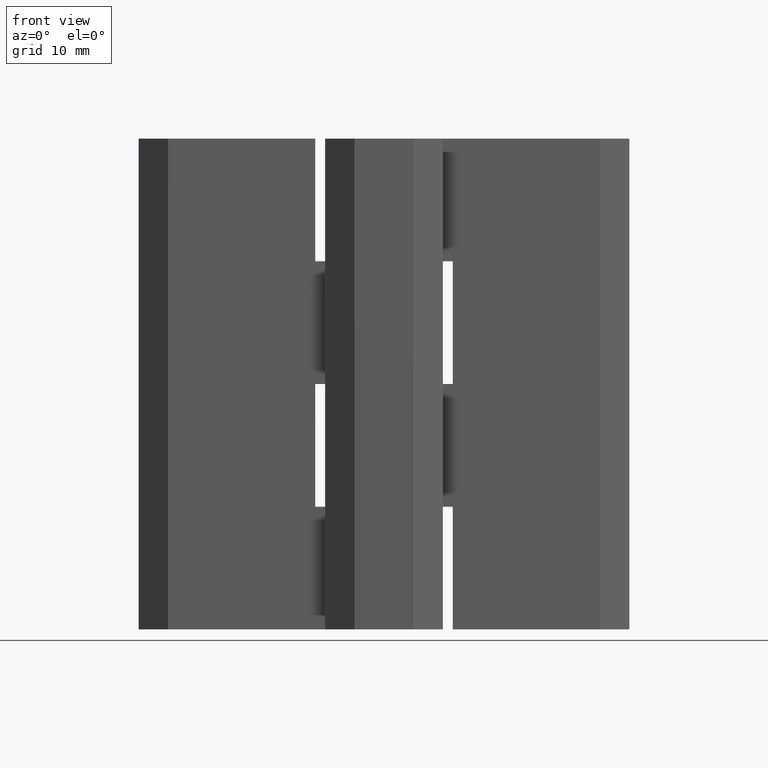
[diagram: clean part render]
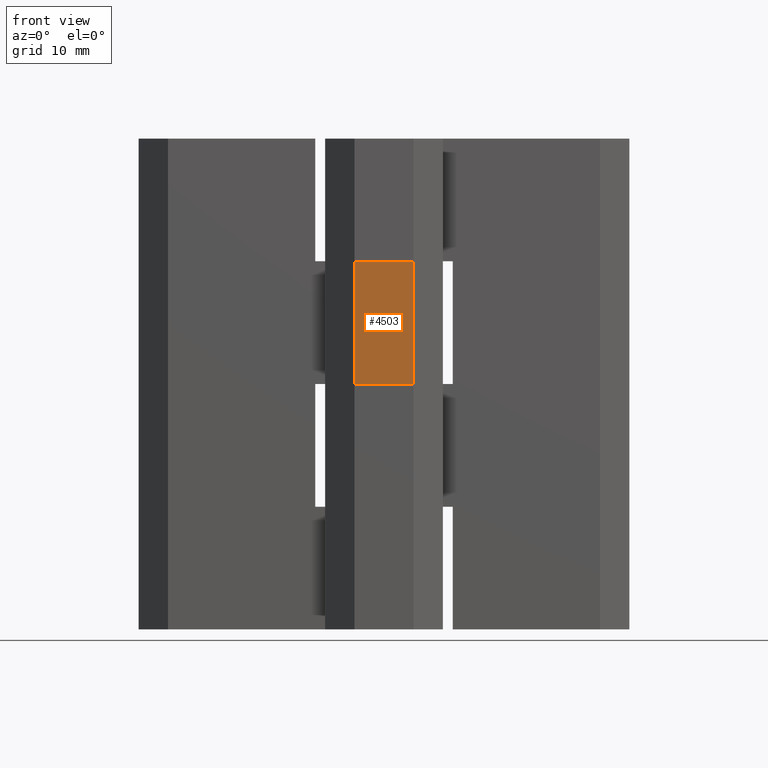
[diagram: same view with one face highlighted and labeled with its STEP entity id]
A machine part, front view. The second image highlights one B-rep face of the part: STEP entity #4503.
In plain terms, the highlighted face is a freeform B-spline surface patch.
Its self-contained STEP definition (entity closure, byte-faithful):
#4039=CARTESIAN_POINT('',(3.000000000000135,-5.0,25.0));
#4040=VERTEX_POINT('',#4039);
#4046=CARTESIAN_POINT('',(-3.0,-5.0,25.0));
#4047=VERTEX_POINT('',#4046);
#4048=CARTESIAN_POINT('',(-3.0,-5.0,25.0));
#4049=CARTESIAN_POINT('',(3.000000000000135,-5.0,25.0));
#4050=QUASI_UNIFORM_CURVE('',1,(#4048,#4049),.UNSPECIFIED.,.F.,.U.);
#4051=EDGE_CURVE('',#4047,#4040,#4050,.T.);
#4214=CARTESIAN_POINT('',(-3.0,-5.0,37.500000000000000));
#4215=VERTEX_POINT('',#4214);
#4221=CARTESIAN_POINT('',(3.000000000000135,-5.0,37.500000000000000));
#4222=VERTEX_POINT('',#4221);
#4223=CARTESIAN_POINT('',(3.000000000000135,-5.0,37.500000000000000));
#4224=CARTESIAN_POINT('',(-3.0,-5.0,37.500000000000000));
#4225=QUASI_UNIFORM_CURVE('',1,(#4223,#4224),.UNSPECIFIED.,.F.,.U.);
#4226=EDGE_CURVE('',#4222,#4215,#4225,.T.);
#4473=CARTESIAN_POINT('',(3.000000000000135,-5.0,37.500000000000000));
#4474=CARTESIAN_POINT('',(3.000000000000135,-5.0,25.0));
#4475=QUASI_UNIFORM_CURVE('',1,(#4473,#4474),.UNSPECIFIED.,.F.,.U.);
#4476=EDGE_CURVE('',#4222,#4040,#4475,.T.);
#4488=CARTESIAN_POINT('',(-3.299699988370843,-5.0,24.375625024227428));
#4489=CARTESIAN_POINT('',(-3.299699988370843,-5.0,38.124375311048702));
#4490=CARTESIAN_POINT('',(3.299700149303519,-5.0,24.375625024227428));
#4491=CARTESIAN_POINT('',(3.299700149303519,-5.0,38.124375311048702));
#4492=B_SPLINE_SURFACE_WITH_KNOTS('',1,1,((#4488,#4490),(#4489,#4491)),.UNSPECIFIED.,.F.,.F.,.U.,(2,2),(2,2),(0.0,13.748750286821281),(0.0,6.599400137674363),.UNSPECIFIED.);
#4493=CARTESIAN_POINT('',(-3.0,-5.0,37.500000000000000));
#4494=CARTESIAN_POINT('',(-3.0,-5.0,25.0));
#4495=QUASI_UNIFORM_CURVE('',1,(#4493,#4494),.UNSPECIFIED.,.F.,.U.);
#4496=EDGE_CURVE('',#4215,#4047,#4495,.T.);
#4497=ORIENTED_EDGE('',*,*,#4496,.T.);
#4498=ORIENTED_EDGE('',*,*,#4051,.T.);
#4499=ORIENTED_EDGE('',*,*,#4476,.F.);
#4500=ORIENTED_EDGE('',*,*,#4226,.T.);
#4501=EDGE_LOOP('',(#4497,#4498,#4499,#4500));
#4502=FACE_OUTER_BOUND('',#4501,.T.);
#4503=ADVANCED_FACE('',(#4502),#4492,.F.);